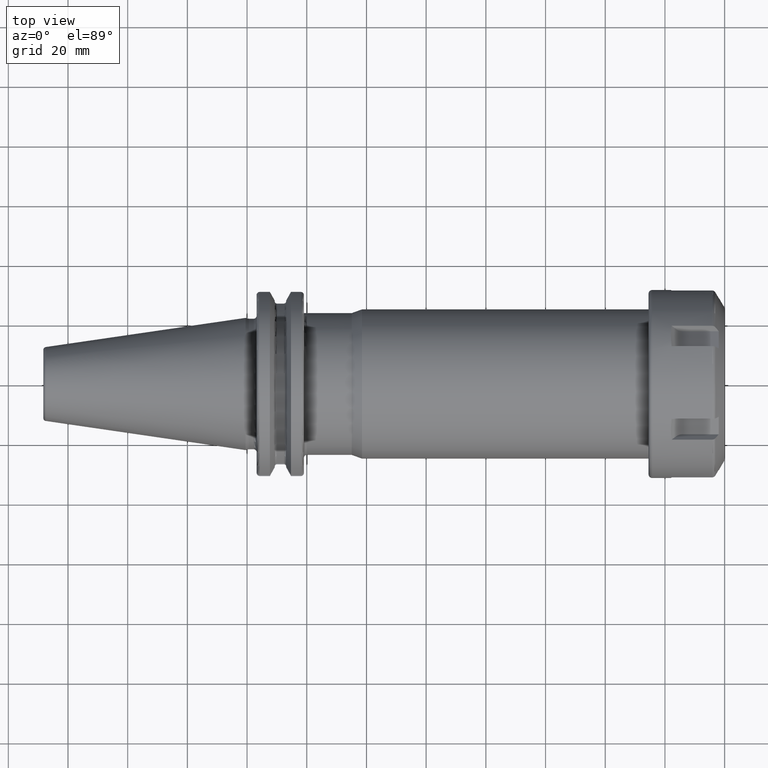
[diagram: clean part render]
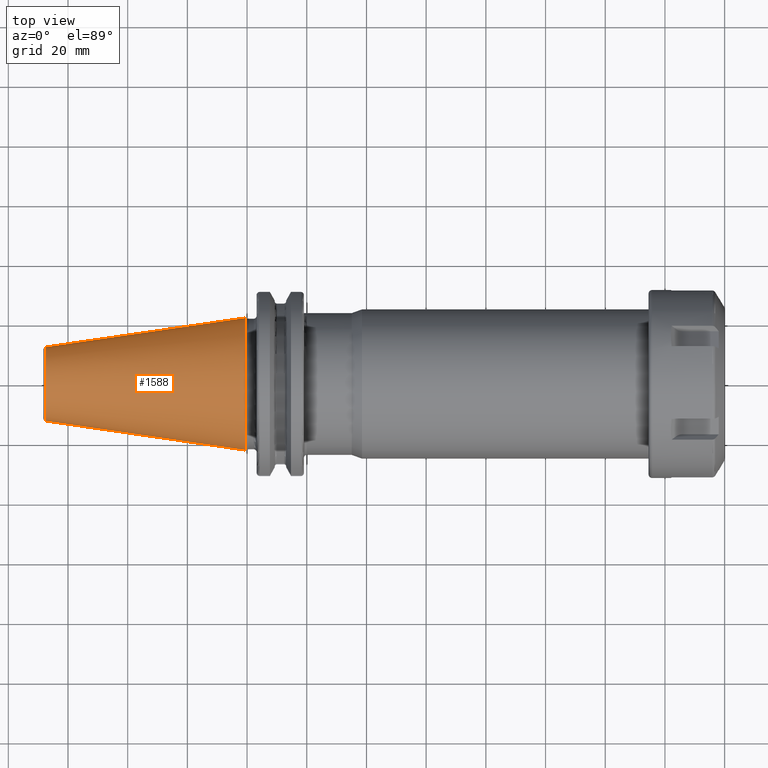
[diagram: same view with one face highlighted and labeled with its STEP entity id]
A machine part, top view. The second image highlights one B-rep face of the part: STEP entity #1588.
In plain terms, the highlighted conical surface has half-angle 8.298 deg.
Its self-contained STEP definition (entity closure, byte-faithful):
#37=CARTESIAN_POINT('',(-6.743710273571E1,0.E0,0.E0));
#38=DIRECTION('',(1.E0,0.E0,0.E0));
#39=DIRECTION('',(0.E0,1.E0,0.E0));
#40=AXIS2_PLACEMENT_3D('',#37,#38,#39);
#42=CARTESIAN_POINT('',(-4.896823332305E-1,0.E0,0.E0));
#43=DIRECTION('',(1.E0,0.E0,0.E0));
#44=DIRECTION('',(0.E0,1.E0,0.E0));
#45=AXIS2_PLACEMENT_3D('',#42,#43,#44);
#47=DIRECTION('',(-9.895312636440E-1,-1.443186691705E-1,0.E0));
#48=VECTOR('',#47,6.765568998391E1);
#49=CARTESIAN_POINT('',(-4.896823332305E-1,2.215358204157E1,0.E0));
#50=LINE('',#49,#48);
#51=DIRECTION('',(-9.895312636440E-1,1.443186691705E-1,0.E0));
#52=VECTOR('',#51,6.765568998391E1);
#53=CARTESIAN_POINT('',(-4.896823332305E-1,-2.215358204157E1,0.E0));
#54=LINE('',#53,#52);
#1265=CARTESIAN_POINT('',(-6.743710273571E1,1.238960290128E1,0.E0));
#1267=VERTEX_POINT('',#1265);
#1269=CARTESIAN_POINT('',(-6.743710273571E1,-1.238960290128E1,0.E0));
#1271=VERTEX_POINT('',#1269);
#1333=CARTESIAN_POINT('',(-4.896823332305E-1,2.215358204157E1,0.E0));
#1334=VERTEX_POINT('',#1333);
#1335=CARTESIAN_POINT('',(-4.896823332305E-1,-2.215358204157E1,0.E0));
#1336=VERTEX_POINT('',#1335);
#1574=CARTESIAN_POINT('',(-3.396339253447E1,0.E0,0.E0));
#1575=DIRECTION('',(1.E0,0.E0,0.E0));
#1576=DIRECTION('',(0.E0,-1.E0,0.E0));
#1577=AXIS2_PLACEMENT_3D('',#1574,#1575,#1576);
#1578=CONICAL_SURFACE('',#1577,1.727159247143E1,8.297826828206E0);
#1580=ORIENTED_EDGE('',*,*,#1579,.F.);
#1582=ORIENTED_EDGE('',*,*,#1581,.T.);
#1584=ORIENTED_EDGE('',*,*,#1583,.T.);
#1585=ORIENTED_EDGE('',*,*,#1567,.F.);
#1586=EDGE_LOOP('',(#1580,#1582,#1584,#1585));
#1587=FACE_OUTER_BOUND('',#1586,.F.);
#1588=ADVANCED_FACE('',(#1587),#1578,.T.);
#41=CIRCLE('',#40,1.238960290128E1);
#46=CIRCLE('',#45,2.215358204157E1);
#1567=EDGE_CURVE('',#1267,#1271,#41,.T.);
#1579=EDGE_CURVE('',#1334,#1267,#50,.T.);
#1581=EDGE_CURVE('',#1334,#1336,#46,.T.);
#1583=EDGE_CURVE('',#1336,#1271,#54,.T.);